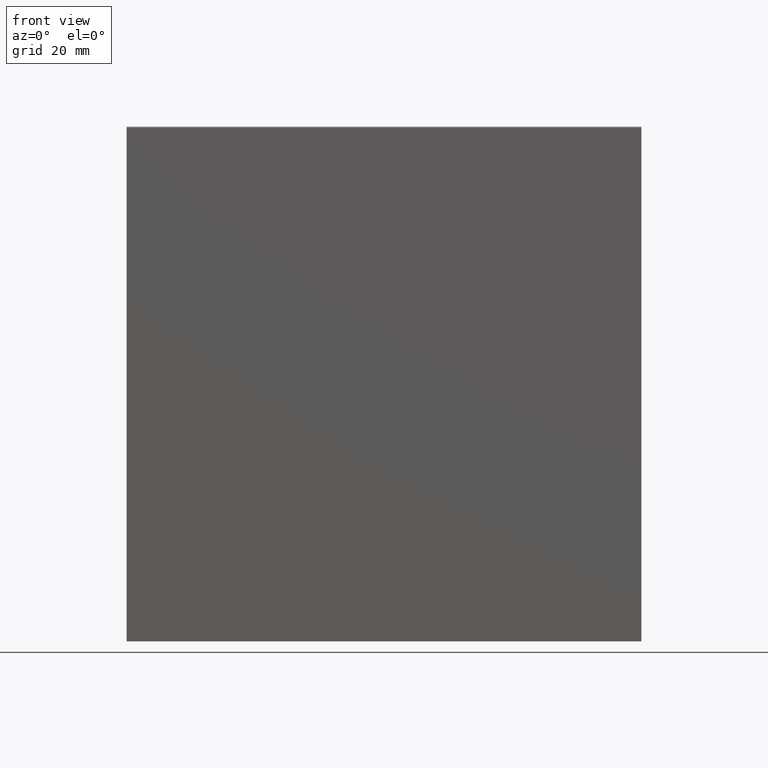
[diagram: clean part render]
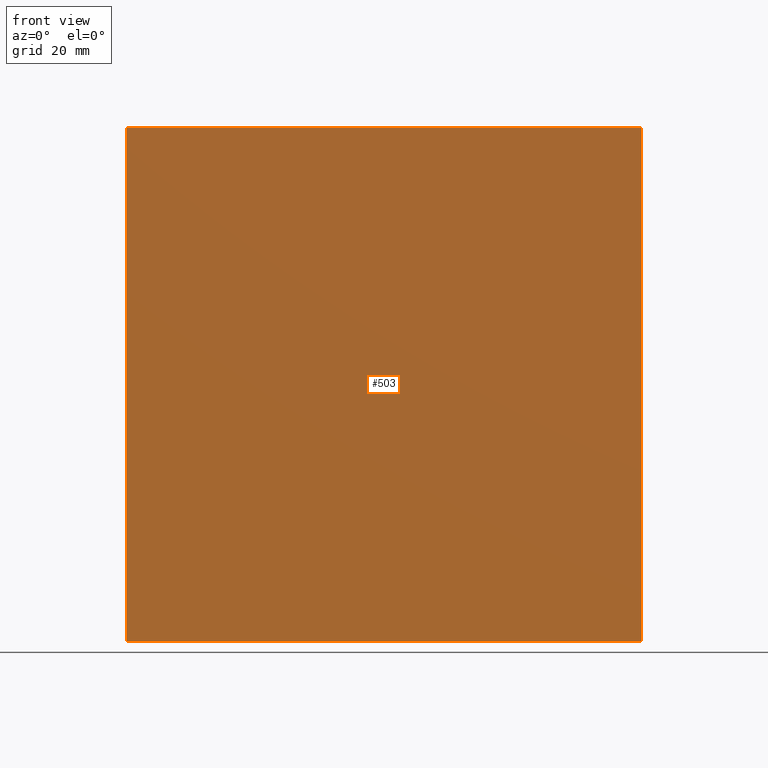
[diagram: same view with one face highlighted and labeled with its STEP entity id]
A machine part, front view. The second image highlights one B-rep face of the part: STEP entity #503.
In plain terms, the highlighted planar face has unit normal (0, 1, 0).
Its self-contained STEP definition (entity closure, byte-faithful):
#83 = VERTEX_POINT ( 'NONE', #194 ) ;
#98 = VERTEX_POINT ( 'NONE', #135 ) ;
#104 = VERTEX_POINT ( 'NONE', #159 ) ;
#111 = VERTEX_POINT ( 'NONE', #147 ) ;
#129 = DIRECTION ( 'NONE',  ( 1.387778780781445200E-016, 0.0000000000000000000, 1.000000000000000000 ) ) ;
#131 = CARTESIAN_POINT ( 'NONE',  ( -50.00000000000000700, 0.0000000000000000000, -50.00000000000000000 ) ) ;
#135 = CARTESIAN_POINT ( 'NONE',  ( 49.99999999999999300, 0.0000000000000000000, -50.00000000000000000 ) ) ;
#147 = CARTESIAN_POINT ( 'NONE',  ( 49.99999999999999300, 0.0000000000000000000, 49.74999999999997200 ) ) ;
#159 = CARTESIAN_POINT ( 'NONE',  ( -50.00000000000000700, 0.0000000000000000000, -50.00000000000000000 ) ) ;
#194 = CARTESIAN_POINT ( 'NONE',  ( -49.99999999999999300, 0.0000000000000000000, 49.75000000000002800 ) ) ;
#218 = ORIENTED_EDGE ( 'NONE', *, *, #512, .T. ) ;
#219 = ORIENTED_EDGE ( 'NONE', *, *, #511, .F. ) ;
#224 = ORIENTED_EDGE ( 'NONE', *, *, #509, .F. ) ;
#226 = ORIENTED_EDGE ( 'NONE', *, *, #833, .F. ) ;
#281 = CARTESIAN_POINT ( 'NONE',  ( -50.00000000000000700, 0.0000000000000000000, -50.00000000000000000 ) ) ;
#282 = DIRECTION ( 'NONE',  ( -0.0000000000000000000, -0.0000000000000000000, -1.000000000000000000 ) ) ;
#285 = CARTESIAN_POINT ( 'NONE',  ( -50.00000000000000700, 0.0000000000000000000, -50.00000000000000000 ) ) ;
#291 = PLANE ( 'NONE',  #553 ) ;
#300 = DIRECTION ( 'NONE',  ( -1.000000000000000000, -0.0000000000000000000, 5.551115123125783700E-016 ) ) ;
#302 = DIRECTION ( 'NONE',  ( 0.0000000000000000000, 1.000000000000000000, 0.0000000000000000000 ) ) ;
#307 = DIRECTION ( 'NONE',  ( -1.000000000000000000, -0.0000000000000000000, -0.0000000000000000000 ) ) ;
#309 = DIRECTION ( 'NONE',  ( 0.0000000000000000000, -0.0000000000000000000, 1.000000000000000000 ) ) ;
#314 = CARTESIAN_POINT ( 'NONE',  ( -49.99999999999995700, 0.0000000000000000000, 49.75000000000002800 ) ) ;
#315 = CARTESIAN_POINT ( 'NONE',  ( 49.99999999999999300, 0.0000000000000000000, -50.00000000000000000 ) ) ;
#373 = EDGE_LOOP ( 'NONE', ( #224, #218, #226, #219 ) ) ;
#503 = ADVANCED_FACE ( 'NONE', ( #681 ), #291, .F. ) ;
#509 = EDGE_CURVE ( 'NONE', #111, #98, #690, .T. ) ;
#511 = EDGE_CURVE ( 'NONE', #98, #104, #694, .T. ) ;
#512 = EDGE_CURVE ( 'NONE', #111, #83, #696, .T. ) ;
#553 = AXIS2_PLACEMENT_3D ( 'NONE', #281, #302, #309 ) ;
#681 = FACE_OUTER_BOUND ( 'NONE', #373, .T. ) ;
#690 = LINE ( 'NONE', #315, #691 ) ;
#691 = VECTOR ( 'NONE', #282, 1000.000000000000000 ) ;
#694 = LINE ( 'NONE', #285, #695 ) ;
#695 = VECTOR ( 'NONE', #307, 1000.000000000000000 ) ;
#696 = LINE ( 'NONE', #314, #697 ) ;
#697 = VECTOR ( 'NONE', #300, 1000.000000000000000 ) ;
#713 = LINE ( 'NONE', #131, #715 ) ;
#715 = VECTOR ( 'NONE', #129, 1000.000000000000000 ) ;
#833 = EDGE_CURVE ( 'NONE', #104, #83, #713, .T. ) ;